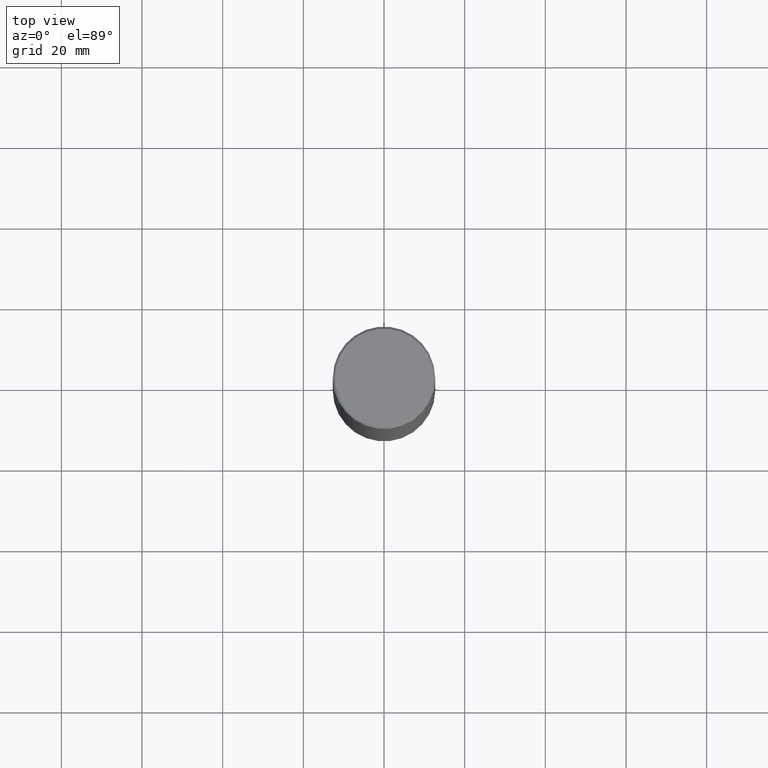
[diagram: clean part render]
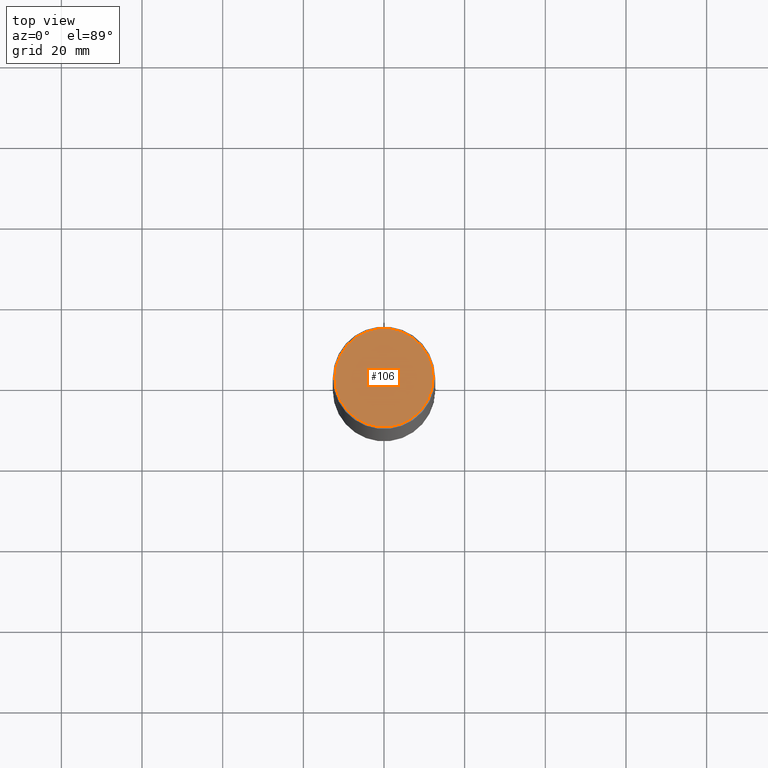
[diagram: same view with one face highlighted and labeled with its STEP entity id]
A machine part, top view. The second image highlights one B-rep face of the part: STEP entity #106.
In plain terms, the highlighted planar face has unit normal (0, -0, -1).
Its self-contained STEP definition (entity closure, byte-faithful):
#3 = CARTESIAN_POINT ( 'NONE',  ( 3.351822085289407153E-15, 0.4799999999999999267, -1.616151867783303914E-15 ) ) ;
#6 = AXIS2_PLACEMENT_3D ( 'NONE', #165, #66, #288 ) ;
#7 = VERTEX_POINT ( 'NONE', #199 ) ;
#11 = FACE_OUTER_BOUND ( 'NONE', #367, .T. ) ;
#14 = DIRECTION ( 'NONE',  ( -1.000000000000000000, 6.982962677686265922E-15, -4.876176775795935793E-29 ) ) ;
#16 = ORIENTED_EDGE ( 'NONE', *, *, #302, .T. ) ;
#66 = DIRECTION ( 'NONE',  ( -2.445468806185136597E-29, 3.491481338843145583E-15, 1.000000000000000000 ) ) ;
#78 = AXIS2_PLACEMENT_3D ( 'NONE', #357, #326, #324 ) ;
#80 = EDGE_CURVE ( 'NONE', #145, #7, #290, .T. ) ;
#106 = ADVANCED_FACE ( 'NONE', ( #11 ), #232, .F. ) ;
#145 = VERTEX_POINT ( 'NONE', #393 ) ;
#165 = CARTESIAN_POINT ( 'NONE',  ( -2.922783960138615261E-45, 4.172960877065252270E-31, 1.195183497228115035E-16 ) ) ;
#192 = AXIS2_PLACEMENT_3D ( 'NONE', #3, #321, #14 ) ;
#199 = CARTESIAN_POINT ( 'NONE',  ( -0.4799999999999999267, 3.386736898677839197E-15, 1.195183497227879609E-16 ) ) ;
#208 = ORIENTED_EDGE ( 'NONE', *, *, #80, .T. ) ;
#232 = PLANE ( 'NONE',  #192 ) ;
#251 = CIRCLE ( 'NONE', #6, 0.4799999999999999267 ) ;
#288 = DIRECTION ( 'NONE',  ( 1.000000000000000000, -6.982962677686266711E-15, 4.874852205035277589E-29 ) ) ;
#290 = CIRCLE ( 'NONE', #78, 0.4799999999999999267 ) ;
#302 = EDGE_CURVE ( 'NONE', #7, #145, #251, .T. ) ;
#321 = DIRECTION ( 'NONE',  ( 2.438088387897960049E-29, -3.491481338843145188E-15, -1.000000000000000000 ) ) ;
#324 = DIRECTION ( 'NONE',  ( 1.000000000000000000, -6.982962677686266711E-15, 4.874852205035277589E-29 ) ) ;
#326 = DIRECTION ( 'NONE',  ( -2.445468806185136597E-29, 3.491481338843145583E-15, 1.000000000000000000 ) ) ;
#357 = CARTESIAN_POINT ( 'NONE',  ( -2.922783960138615261E-45, 4.172960877065252270E-31, 1.195183497228115035E-16 ) ) ;
#367 = EDGE_LOOP ( 'NONE', ( #16, #208 ) ) ;
#393 = CARTESIAN_POINT ( 'NONE',  ( 0.4799999999999999267, -3.396558832296482099E-15, 1.195183497228351200E-16 ) ) ;